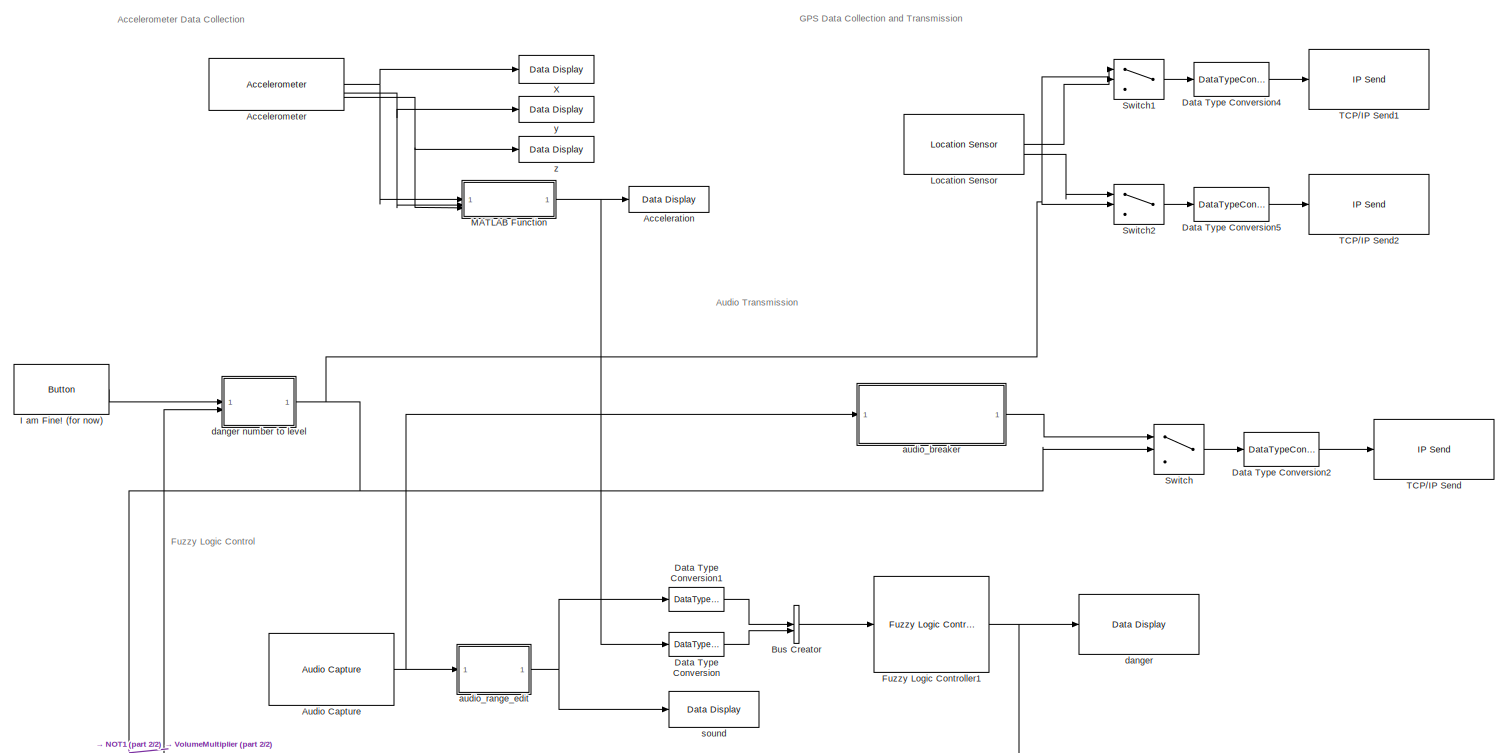
[diagram: root canvas - part 1/2, full width, top band]
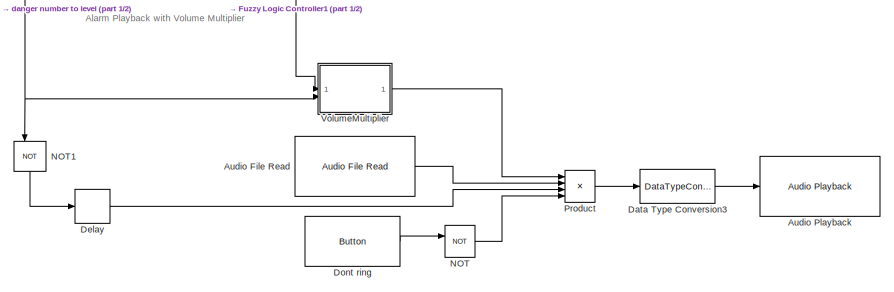
[diagram: root canvas - part 2/2, bottom center region]
MODEL slx_55191cf4d6c9
KIND model
CONFIG AbsTol = auto
CONFIG EnableMultiTasking = off
CONFIG FixedStep = 0.0125
CONFIG MaxStep = auto
CONFIG MinStep = auto
CONFIG RelTol = 1e-3
CONFIG SampleTimeConstraint = Unconstrained
CONFIG SolverName = FixedStepAuto
CONFIG StartTime = 0.0
CONFIG StopTime = inf
BLOCK [Reference] Acceleration  REF=androiduilib/Data Display
  SourceBlock = androiduilib/Data Display
  SourceType = codertarget.internal.androidDataDisplay
BLOCK [Reference] Accelerometer  REF=androidsensorlib/Accelerometer
  SourceBlock = androidsensorlib/Accelerometer
  SourceType = codertarget.internal.androidAccelerometer
BLOCK [Reference] Audio Capture  REF=androidaudiovideolib/Audio Capture
  SourceBlock = androidaudiovideolib/Audio Capture
  SourceType = codertarget.internal.androidAudioCapture
BLOCK [Reference] Audio File Read  REF=androidaudiovideolib/Audio File Read
  SourceBlock = androidaudiovideolib/Audio File Read
  SourceType = codertarget.internal.androidAudioFileRead
BLOCK [Reference] Audio Playback  REF=androidaudiovideolib/Audio Playback
  SourceBlock = androidaudiovideolib/Audio Playback
  SourceType = codertarget.internal.androidAudioPlayback
BLOCK [BusCreator] Bus Creator
  DisplayOption = bar
  InheritFromInputs = on
  Inputs = 2
BLOCK [DataTypeConversion] Data Type Conversion
  OutDataTypeStr = double
  RndMeth = Floor
  SaturateOnIntegerOverflow = off
BLOCK [DataTypeConversion] Data Type Conversion1
  OutDataTypeStr = double
  RndMeth = Floor
  SaturateOnIntegerOverflow = off
BLOCK [DataTypeConversion] Data Type Conversion2
  OutDataTypeStr = double
  RndMeth = Floor
  SaturateOnIntegerOverflow = off
BLOCK [DataTypeConversion] Data Type Conversion3
  OutDataTypeStr = int16
  RndMeth = Floor
  SaturateOnIntegerOverflow = off
BLOCK [DataTypeConversion] Data Type Conversion4
  OutDataTypeStr = double
  RndMeth = Floor
  SaturateOnIntegerOverflow = off
BLOCK [DataTypeConversion] Data Type Conversion5
  OutDataTypeStr = double
  RndMeth = Floor
  SaturateOnIntegerOverflow = off
BLOCK [Delay] Delay
  DelayLength = 240
  InputPortMap = u0
BLOCK [Reference] Dont ring  REF=androiduilib/Button
  SourceBlock = androiduilib/Button
  SourceType = codertarget.internal.androidButton
BLOCK [Reference] Fuzzy Logic Controller1  REF=fuzblock/Fuzzy Logic   (lib defined in mdl_858b3b3e7478)
Controller
  Commented = on
  SourceBlock = fuzblock/Fuzzy Logic \nController
  SourceType = Fuzzy Inference System
BLOCK [Reference] I am Fine! (for now)  REF=androiduilib/Button
  SourceBlock = androiduilib/Button
  SourceType = codertarget.internal.androidButton
BLOCK [Reference] Location Sensor  REF=androidsensorlib/Location Sensor
  SourceBlock = androidsensorlib/Location Sensor
  SourceType = codertarget.internal.androidLocation
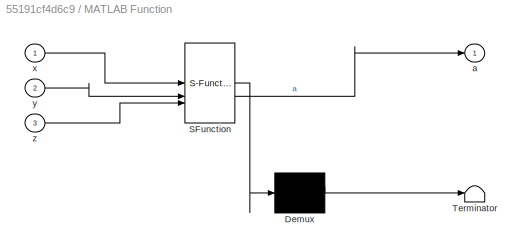
BLOCK [SubSystem] MATLAB Function
  ErrorFcn = Stateflow.Translate.translate
  LibrarySourceBlock = simulink/User-Defined\nFunctions/MATLAB Function
  PermitHierarchicalResolution = ExplicitOnly
  SFBlockType = MATLAB Function
  TreatAsAtomicUnit = on
BLOCK [Demux] MATLAB Function/ Demux 
  Outputs = 1
BLOCK [S-Function] MATLAB Function/ SFunction 
  EnableBusSupport = on
  FunctionName = sf_sfun
  PortCounts = [3 2]
  SFcnIsStateOwnerBlock = off
  SFunctionDeploymentMode = off
  Tag = Stateflow S-Function 2
BLOCK [Terminator] MATLAB Function/ Terminator 
BLOCK [Outport] MATLAB Function/a
BLOCK [Inport] MATLAB Function/x
BLOCK [Inport] MATLAB Function/y
  Port = 2
BLOCK [Inport] MATLAB Function/z
  Port = 3
BLOCK [Logic] NOT
  AllPortsSameDT = off
  IconShape = distinctive
  Operator = NOT
  OutDataTypeStr = boolean
BLOCK [Logic] NOT1
  AllPortsSameDT = off
  IconShape = distinctive
  NameLocation = left
  Operator = NOT
  OutDataTypeStr = boolean
BLOCK [Product] Product
  Inputs = 4
BLOCK [Switch] Switch
  Criteria = u2 > Threshold
  InputSameDT = off
  SaturateOnIntegerOverflow = off
BLOCK [Switch] Switch1
  Criteria = u2 > Threshold
  InputSameDT = off
  OutDataTypeStr = double
  SaturateOnIntegerOverflow = off
BLOCK [Switch] Switch2
  Criteria = u2 > Threshold
  InputSameDT = off
  OutDataTypeStr = double
  SaturateOnIntegerOverflow = off
BLOCK [Reference] TCP//IP Send  REF=androidcommunicationlib/TCP//IP Send
  SourceBlock = androidcommunicationlib/TCP//IP Send
  SourceType = codertarget.internal.androidTCPSend
BLOCK [Reference] TCP//IP Send1  REF=androidcommunicationlib/TCP//IP Send
  SourceBlock = androidcommunicationlib/TCP//IP Send
  SourceType = codertarget.internal.androidTCPSend
BLOCK [Reference] TCP//IP Send2  REF=androidcommunicationlib/TCP//IP Send
  SourceBlock = androidcommunicationlib/TCP//IP Send
  SourceType = codertarget.internal.androidTCPSend
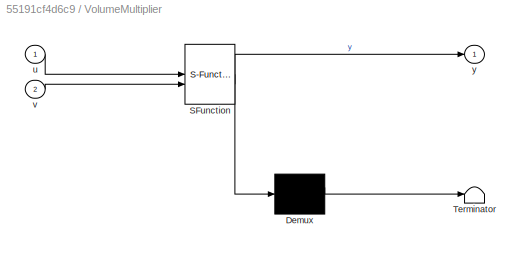
BLOCK [SubSystem] VolumeMultiplier
  ErrorFcn = Stateflow.Translate.translate
  LibrarySourceBlock = simulink/User-Defined\nFunctions/MATLAB Function
  PermitHierarchicalResolution = ExplicitOnly
  SFBlockType = MATLAB Function
  TreatAsAtomicUnit = on
BLOCK [Demux] VolumeMultiplier/ Demux 
  Outputs = 1
BLOCK [S-Function] VolumeMultiplier/ SFunction 
  EnableBusSupport = on
  FunctionName = sf_sfun
  PortCounts = [2 2]
  SFcnIsStateOwnerBlock = off
  SFunctionDeploymentMode = off
  Tag = Stateflow S-Function 5
BLOCK [Terminator] VolumeMultiplier/ Terminator 
BLOCK [Inport] VolumeMultiplier/u
BLOCK [Inport] VolumeMultiplier/v
  Port = 2
BLOCK [Outport] VolumeMultiplier/y
BLOCK [Reference] X  REF=androiduilib/Data Display
  SourceBlock = androiduilib/Data Display
  SourceType = codertarget.internal.androidDataDisplay
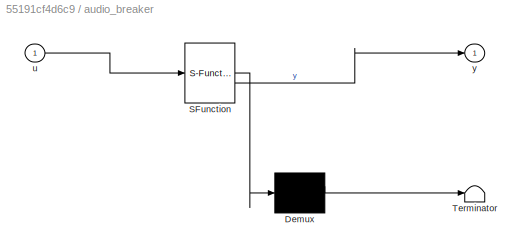
BLOCK [SubSystem] audio_breaker
  ErrorFcn = Stateflow.Translate.translate
  LibrarySourceBlock = simulink/User-Defined\nFunctions/MATLAB Function
  PermitHierarchicalResolution = ExplicitOnly
  SFBlockType = MATLAB Function
  TreatAsAtomicUnit = on
BLOCK [Demux] audio_breaker/ Demux 
  Outputs = 1
BLOCK [S-Function] audio_breaker/ SFunction 
  EnableBusSupport = on
  FunctionName = sf_sfun
  PortCounts = [1 2]
  SFcnIsStateOwnerBlock = off
  SFunctionDeploymentMode = off
  Tag = Stateflow S-Function 3
BLOCK [Terminator] audio_breaker/ Terminator 
BLOCK [Inport] audio_breaker/u
BLOCK [Outport] audio_breaker/y
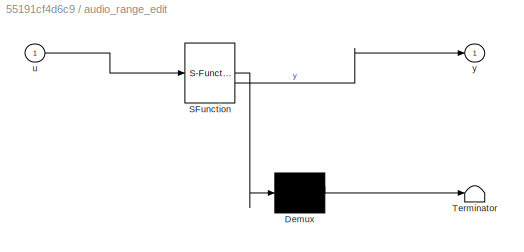
BLOCK [SubSystem] audio_range_edit
  ErrorFcn = Stateflow.Translate.translate
  LibrarySourceBlock = simulink/User-Defined\nFunctions/MATLAB Function
  PermitHierarchicalResolution = ExplicitOnly
  SFBlockType = MATLAB Function
  TreatAsAtomicUnit = on
BLOCK [Demux] audio_range_edit/ Demux 
  Outputs = 1
BLOCK [S-Function] audio_range_edit/ SFunction 
  EnableBusSupport = on
  FunctionName = sf_sfun
  PortCounts = [1 2]
  SFcnIsStateOwnerBlock = off
  SFunctionDeploymentMode = off
  Tag = Stateflow S-Function 1
BLOCK [Terminator] audio_range_edit/ Terminator 
BLOCK [Inport] audio_range_edit/u
BLOCK [Outport] audio_range_edit/y
BLOCK [Reference] danger  REF=androiduilib/Data Display
  SourceBlock = androiduilib/Data Display
  SourceType = codertarget.internal.androidDataDisplay
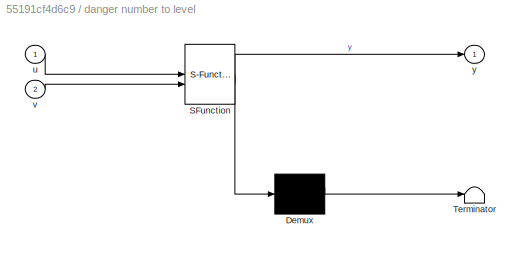
BLOCK [SubSystem] danger number to level 
  ErrorFcn = Stateflow.Translate.translate
  LibrarySourceBlock = simulink/User-Defined\nFunctions/MATLAB Function
  PermitHierarchicalResolution = ExplicitOnly
  SFBlockType = MATLAB Function
  TreatAsAtomicUnit = on
BLOCK [Demux] danger number to level / Demux 
  Outputs = 1
BLOCK [S-Function] danger number to level / SFunction 
  EnableBusSupport = on
  FunctionName = sf_sfun
  PortCounts = [2 2]
  SFcnIsStateOwnerBlock = off
  SFunctionDeploymentMode = off
  Tag = Stateflow S-Function 4
BLOCK [Terminator] danger number to level / Terminator 
BLOCK [Inport] danger number to level /u
BLOCK [Inport] danger number to level /v
  Port = 2
BLOCK [Outport] danger number to level /y
BLOCK [Reference] sound  REF=androiduilib/Data Display
  SourceBlock = androiduilib/Data Display
  SourceType = codertarget.internal.androidDataDisplay
BLOCK [Reference] y  REF=androiduilib/Data Display
  SourceBlock = androiduilib/Data Display
  SourceType = codertarget.internal.androidDataDisplay
BLOCK [Reference] z  REF=androiduilib/Data Display
  SourceBlock = androiduilib/Data Display
  SourceType = codertarget.internal.androidDataDisplay
ANNOTATION (root): Accelerometer Data Collection
ANNOTATION (root): Alarm Playback with Volume Multiplier
ANNOTATION (root): Audio Transmission
ANNOTATION (root): Fuzzy Logic Control
ANNOTATION (root): GPS Data Collection and Transmission
NET Accelerometer:1 -> MATLAB Function:1, X:1
NET Accelerometer:2 -> MATLAB Function:2, y:1
NET Accelerometer:3 -> MATLAB Function:3, z:1
NET Audio Capture:1 -> audio_breaker:1, audio_range_edit:1
LINE Audio File Read:1 -> Product:2
LINE Bus Creator:1 -> Fuzzy Logic Controller1:1
LINE Data Type Conversion1:1 -> Bus Creator:1
LINE Data Type Conversion2:1 -> TCP//IP Send:1
LINE Data Type Conversion3:1 -> Audio Playback:1
LINE Data Type Conversion4:1 -> TCP//IP Send1:1
LINE Data Type Conversion5:1 -> TCP//IP Send2:1
LINE Data Type Conversion:1 -> Bus Creator:2
LINE Delay:1 -> Product:3
LINE Dont ring:1 -> NOT:1
NET Fuzzy Logic Controller1:1 -> VolumeMultiplier:1, danger number to level :2, danger:1
LINE I am Fine! (for now):1 -> danger number to level :1
LINE Location Sensor:1 -> Switch1:1
LINE Location Sensor:2 -> Switch2:1
NET MATLAB Function:1 -> Acceleration:1, Data Type Conversion:1
LINE NOT1:1 -> Delay:1
LINE NOT:1 -> Product:4
LINE Product:1 -> Data Type Conversion3:1
LINE Switch1:1 -> Data Type Conversion4:1
LINE Switch2:1 -> Data Type Conversion5:1
LINE Switch:1 -> Data Type Conversion2:1
LINE VolumeMultiplier:1 -> Product:1
LINE audio_breaker:1 -> Switch:1
NET audio_range_edit:1 -> Data Type Conversion1:1, sound:1
NET danger number to level :1 -> NOT1:1, Switch1:2, Switch2:2, Switch:2, VolumeMultiplier:2
note: NET lines group one-source signal fan-out (src -> all destinations, sorted); 1:1 wires keep LINE
CHART MATLAB Function states=1 transitions=1
  STATE_LABEL 'eML_blk_kernel()'
  STATE_LABEL 'SCRIPT:\nfunction a = fcn(x,y,z)\nx = x/60;\ny = y/80;\nz = z/80;\n\nai = (x^2)+(y^2)+(z^2);\nb = ai^0.5;\na = b;'
CHART audio_breaker states=1 transitions=1
  STATE_LABEL 'eML_blk_kernel()'
  STATE_LABEL 'SCRIPT:\nfunction y = fcn(u)\ny = u(:,1);\n'
CHART danger number to level
 states=1 transitions=1
  STATE_LABEL 'eML_blk_kernel()'
  STATE_LABEL 'SCRIPT:\nfunction y = fcn(u,v)\npersistent flag;\n\n    if isempty(flag)\n        flag = 0;\n    end\n\n    if u == 1\n        flag = 0;\n        y = 0;\n    elseif v > 0.45\n        flag = 1;\n        y = 1;\n    else\n        y = flag;\n    end\nend'
CHART VolumeMultiplier states=1 transitions=1
  STATE_LABEL 'eML_blk_kernel()'
  STATE_LABEL 'SCRIPT:\nfunction y = fcn(u, v)\n    if v ==1\n               y = 1;\n    elseif u < 0.25\n        y = 0;\n    elseif u >= 0.20 && u < 0.35\n        y = 0.2;\n    else\n        y = 1;\n    end'
CHART audio_range_edit states=1 transitions=1
  STATE_LABEL 'eML_blk_kernel()'
  STATE_LABEL 'SCRIPT:\nfunction y = fcn(u)\nui = abs(u);\nyi = mean(ui,2);\ny = mean(yi)/20000;'
CHART  states=0 transitions=0
CHART  states=0 transitions=0
CHART  states=0 transitions=0
CHART  states=0 transitions=0
CHART  states=0 transitions=0
